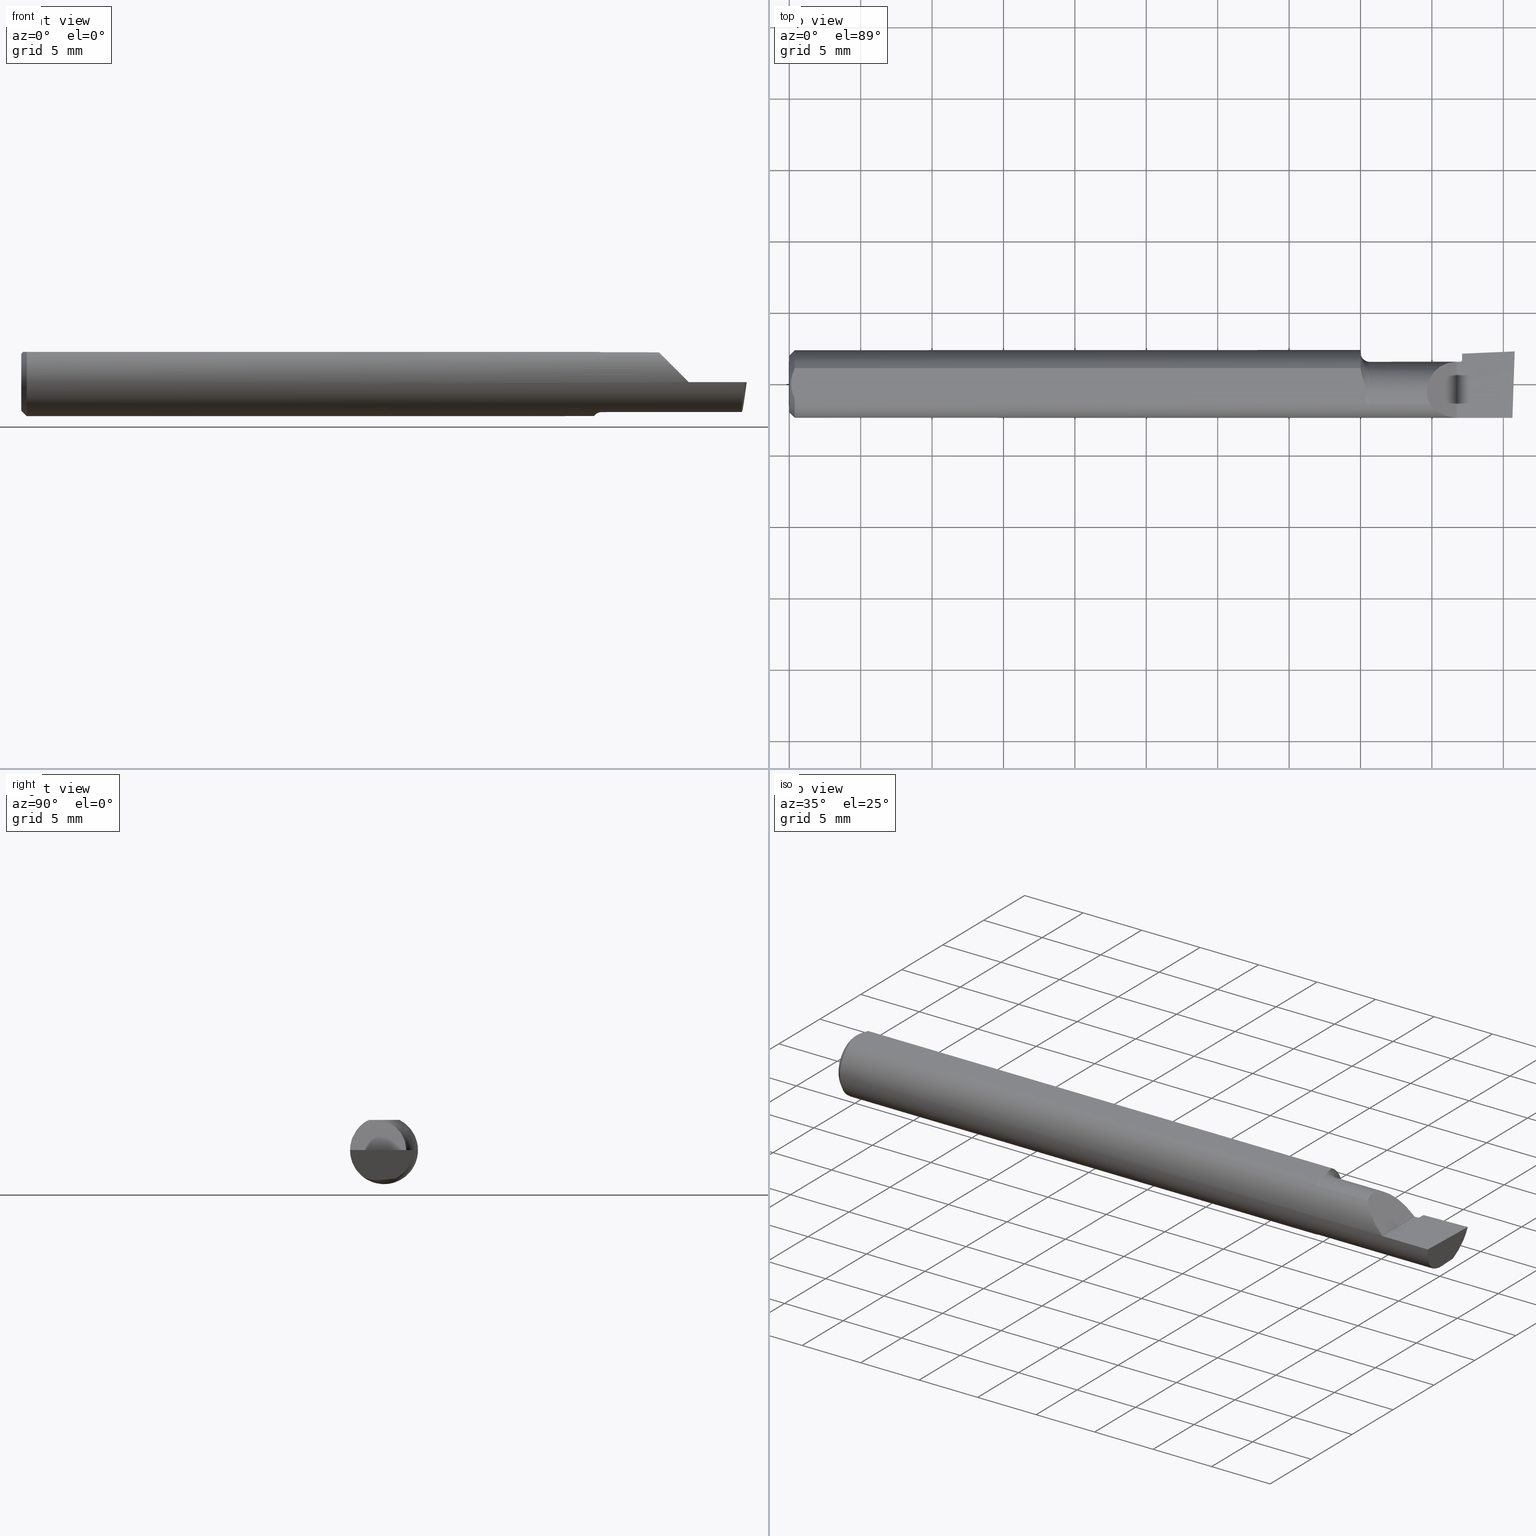
[diagram: canonical four-view strip — front | top / right | iso, engineering-drawing reading convention]
A machine part, canonical four-view strip (front | top / right | iso — engineering-drawing reading convention). The complete STEP part file that produces these views, byte-faithful:
ISO-10303-21;
HEADER;
FILE_DESCRIPTION (( 'STEP AP203' ),
    '1' );
FILE_NAME ('210246-BB183.STEP',
    '2024-04-17T22:10:11',
    ( '' ),
    ( '' ),
    'SwSTEP 2.0',
    'SolidWorks 2022',
    '' );
FILE_SCHEMA (( 'CONFIG_CONTROL_DESIGN' ));
ENDSEC;

DATA;
#1 = PERSON_AND_ORGANIZATION ( #334, #610 ) ;
#2 = CARTESIAN_POINT ( 'NONE',  ( 1.784610455782699834, -0.08049145269555538218, 0.05598954421729967351 ) ) ;
#3 = ORIENTED_EDGE ( 'NONE', *, *, #326, .T. ) ;
#4 = ADVANCED_FACE ( 'NONE', ( #402 ), #208, .T. ) ;
#5 = APPROVAL_STATUS ( 'not_yet_approved' ) ;
#6 = CARTESIAN_POINT ( 'NONE',  ( 1.810798836011073609, -0.09341088610867002984, 0.02980116398892594665 ) ) ;
#7 = ORIENTED_EDGE ( 'NONE', *, *, #52, .F. ) ;
#8 = ADVANCED_FACE ( 'NONE', ( #220 ), #50, .F. ) ;
#9 = CARTESIAN_POINT ( 'NONE',  ( 1.599999999999999867, -0.02100000000000000477, 0.000000000000000000 ) ) ;
#10 = ORIENTED_EDGE ( 'NONE', *, *, #452, .T. ) ;
#11 = CIRCLE ( 'NONE', #340, 0.08239999999999997327 ) ;
#12 = VECTOR ( 'NONE', #511, 39.37007874015748143 ) ;
#13 = DIRECTION ( 'NONE',  ( 0.000000000000000000, 0.9961946980917462113, 0.08715574274765139351 ) ) ;
#14 = DIRECTION ( 'NONE',  ( -1.000000000000000000, -0.000000000000000000, -0.000000000000000000 ) ) ;
#15 = CARTESIAN_POINT ( 'NONE',  ( 0.01500000000000024925, 0.000000000000000000, 0.000000000000000000 ) ) ;
#16 = CARTESIAN_POINT ( 'NONE',  ( 1.985817582123950320, -0.05743333333333348889, -0.07390786306085575519 ) ) ;
#17 = DIRECTION ( 'NONE',  ( 1.000000000000000000, -0.000000000000000000, -0.000000000000000000 ) ) ;
#18 = DIRECTION ( 'NONE',  ( 0.000000000000000000, 0.000000000000000000, 1.000000000000000000 ) ) ;
#19 = AXIS2_PLACEMENT_3D ( 'NONE', #184, #560, #373 ) ;
#20 = ORIENTED_EDGE ( 'NONE', *, *, #75, .T. ) ;
#21 = DIRECTION ( 'NONE',  ( 0.000000000000000000, -1.000000000000000000, 0.000000000000000000 ) ) ;
#22 = DIRECTION ( 'NONE',  ( -4.268512490100411279E-18, -1.000000000000000000, 0.000000000000000000 ) ) ;
#23 = EDGE_CURVE ( 'NONE', #253, #431, #301, .T. ) ;
#24 = ORIENTED_EDGE ( 'NONE', *, *, #424, .F. ) ;
#25 = ORIENTED_EDGE ( 'NONE', *, *, #164, .F. ) ;
#26 = EDGE_CURVE ( 'NONE', #403, #426, #460, .T. ) ;
#27 = CARTESIAN_POINT ( 'NONE',  ( 1.766692136939143953, -0.05743333333333389135, 0.07390786306085547763 ) ) ;
#28 = CARTESIAN_POINT ( 'NONE',  ( 0.01500000000000024925, 0.000000000000000000, 0.000000000000000000 ) ) ;
#29 = ORIENTED_EDGE ( 'NONE', *, *, #337, .F. ) ;
#30 = VECTOR ( 'NONE', #187, 39.37007874015748854 ) ;
#31 = CARTESIAN_POINT ( 'NONE',  ( 1.575142176526518778, 0.04209513036078768589, 0.08360000000000000764 ) ) ;
#32 = CARTESIAN_POINT ( 'NONE',  ( 1.574999999999999956, 0.08639999999999994906, 0.000000000000000000 ) ) ;
#33 = APPLICATION_CONTEXT ( 'configuration controlled 3d designs of mechanical parts and assemblies' ) ;
#34 = ORIENTED_EDGE ( 'NONE', *, *, #96, .F. ) ;
#35 =( NAMED_UNIT ( * ) PLANE_ANGLE_UNIT ( ) SI_UNIT ( $, .RADIAN. ) );
#36 = CARTESIAN_POINT ( 'NONE',  ( 1.995700996757002965, 0.08264169502808201007, -0.03297536001410257545 ) ) ;
#37 = CARTESIAN_POINT ( 'NONE',  ( 1.840000000000000080, 0.06139781550502415586, 0.0005999999999995612792 ) ) ;
#38 = CC_DESIGN_PERSON_AND_ORGANIZATION_ASSIGNMENT ( #553, #508, ( #260 ) ) ;
#39 = CARTESIAN_POINT ( 'NONE',  ( 1.576144576143710285, 0.01709494092009376451, -0.09263046394120928728 ) ) ;
#40 = PERSON_AND_ORGANIZATION ( #334, #610 ) ;
#41 = AXIS2_PLACEMENT_3D ( 'NONE', #542, #113, #22 ) ;
#42 = FACE_OUTER_BOUND ( 'NONE', #119, .T. ) ;
#43 = CIRCLE ( 'NONE', #154, 0.1149226993840855859 ) ;
#44 = CARTESIAN_POINT ( 'NONE',  ( 1.840000000000000080, -0.09359999999999998876, -1.868634782302818344E-17 ) ) ;
#45 = EDGE_LOOP ( 'NONE', ( #551, #76 ) ) ;
#46 = COORDINATED_UNIVERSAL_TIME_OFFSET ( 8, 0, .BEHIND. ) ;
#47 = LINE ( 'NONE', #476, #114 ) ;
#48 = ORIENTED_EDGE ( 'NONE', *, *, #452, .F. ) ;
#49 = CYLINDRICAL_SURFACE ( 'NONE', #596, 0.09360000000000001652 ) ;
#50 = TOROIDAL_SURFACE ( 'NONE', #374, 0.1073999999999999400, 0.02499999999999993894 ) ;
#51 = ORIENTED_EDGE ( 'NONE', *, *, #565, .T. ) ;
#52 = EDGE_CURVE ( 'NONE', #448, #343, #501, .T. ) ;
#53 = B_SPLINE_CURVE_WITH_KNOTS ( 'NONE', 3,
 ( #63, #598, #65, #445, #589, #73 ),
 .UNSPECIFIED., .F., .F.,
 ( 4, 2, 4 ),
 ( 0.001498230153270218050, 0.002046825164355170045, 0.002595420175440121824 ),
 .UNSPECIFIED. ) ;
#54 = DIRECTION ( 'NONE',  ( 1.000000000000000000, 0.000000000000000000, 0.000000000000000000 ) ) ;
#55 = ORIENTED_EDGE ( 'NONE', *, *, #615, .T. ) ;
#56 = CARTESIAN_POINT ( 'NONE',  ( 1.575142176526518778, 0.04209513036078768589, 0.08360000000000000764 ) ) ;
#57 = ORIENTED_EDGE ( 'NONE', *, *, #617, .T. ) ;
#58 = DESIGN_CONTEXT ( 'detailed design', #109, 'design' ) ;
#59 = CARTESIAN_POINT ( 'NONE',  ( 1.943946363665673305, 0.02997020156410651337, -0.07825543979908149150 ) ) ;
#60 = CARTESIAN_POINT ( 'NONE',  ( 1.587244037189778689, -0.04400341751547286878, -0.08275374857139974893 ) ) ;
#61 = AXIS2_PLACEMENT_3D ( 'NONE', #32, #618, #567 ) ;
#62 = CONICAL_SURFACE ( 'NONE', #429, 0.1138748889330658265, 0.04188790204786419641 ) ;
#63 = CARTESIAN_POINT ( 'NONE',  ( 0.01500000000000024925, 0.04209513035969833505, 0.08360000000000004927 ) ) ;
#64 = CARTESIAN_POINT ( 'NONE',  ( 1.724999999999999867, -0.05743333333333348889, 0.07390786306085575519 ) ) ;
#65 = CARTESIAN_POINT ( 'NONE',  ( 0.009483687754784102600, 0.02856776309113260789, 0.08360000000000000764 ) ) ;
#66 = VERTEX_POINT ( 'NONE', #306 ) ;
#67 = DIRECTION ( 'NONE',  ( 0.1219414168599299853, 0.000000000000000000, 0.9925372994775525370 ) ) ;
#68 = PLANE ( 'NONE',  #318 ) ;
#69 = ADVANCED_FACE ( 'NONE', ( #594 ), #68, .F. ) ;
#70 = ADVANCED_FACE ( 'NONE', ( #266 ), #351, .F. ) ;
#71 = ORIENTED_EDGE ( 'NONE', *, *, #615, .F. ) ;
#72 = CIRCLE ( 'NONE', #450, 0.07859999999999980891 ) ;
#73 = CARTESIAN_POINT ( 'NONE',  ( 0.005000000000000217812, 1.023804700982173805E-17, 0.08360000000000000764 ) ) ;
#74 = CARTESIAN_POINT ( 'NONE',  ( 0.000000000000000000, -0.02099999999999999437, 0.000000000000000000 ) ) ;
#75 = EDGE_CURVE ( 'NONE', #555, #66, #124, .T. ) ;
#76 = ORIENTED_EDGE ( 'NONE', *, *, #586, .T. ) ;
#77 =( BOUNDED_CURVE ( )  B_SPLINE_CURVE ( 3, ( #375, #621, #36, #554 ),
 .UNSPECIFIED., .F., .T. ) 
 B_SPLINE_CURVE_WITH_KNOTS ( ( 4, 4 ),
 ( 3.960321937159471783, 4.773880858322181453 ),
 .UNSPECIFIED. ) 
 CURVE ( )  GEOMETRIC_REPRESENTATION_ITEM ( )  RATIONAL_B_SPLINE_CURVE ( ( 1.000000000000000000, 0.9455998676827520599, 0.9455998676827520599, 1.000000000000000000 ) ) 
 REPRESENTATION_ITEM ( '' )  );
#78 = CARTESIAN_POINT ( 'NONE',  ( 1.586717443774290803, -0.04209513035984616125, 0.08360000000000000764 ) ) ;
#79 = CARTESIAN_POINT ( 'NONE',  ( 1.574999999999999956, 0.05554285714285678299, -0.07533890774631794851 ) ) ;
#80 = EDGE_LOOP ( 'NONE', ( #34, #587, #25, #129 ) ) ;
#81 = CARTESIAN_POINT ( 'NONE',  ( 1.854999999999999760, -0.02860000000000001083, 0.02500000000000000139 ) ) ;
#82 = CARTESIAN_POINT ( 'NONE',  ( 1.840000000000000080, 0.09359999999999998876, -1.868634782302818344E-17 ) ) ;
#83 = VERTEX_POINT ( 'NONE', #603 ) ;
#84 = TOROIDAL_SURFACE ( 'NONE', #552, 0.08739999999999989444, 0.004999999999999903827 ) ;
#85 = SECURITY_CLASSIFICATION ( '', '', #148 ) ;
#86 = DIRECTION ( 'NONE',  ( 0.000000000000000000, 0.000000000000000000, 1.000000000000000000 ) ) ;
#87 = VERTEX_POINT ( 'NONE', #538 ) ;
#88 = LINE ( 'NONE', #135, #12 ) ;
#89 = CARTESIAN_POINT ( 'NONE',  ( 1.575168354287724393, 0.03731812126117082379, -0.08648697983258356314 ) ) ;
#90 = DATE_TIME_ROLE ( 'classification_date' ) ;
#91 = PLANE ( 'NONE',  #201 ) ;
#92 = COORDINATED_UNIVERSAL_TIME_OFFSET ( 8, 0, .BEHIND. ) ;
#93 = AXIS2_PLACEMENT_3D ( 'NONE', #138, #312, #416 ) ;
#94 = CARTESIAN_POINT ( 'NONE',  ( 1.857912095033705357, 0.08369557080627151868, -1.868634782302818344E-17 ) ) ;
#95 = LOCAL_TIME ( 15, 10, 11.00000000000000000, #242 ) ;
#96 = EDGE_CURVE ( 'NONE', #277, #616, #11, .T. ) ;
#97 = FACE_OUTER_BOUND ( 'NONE', #281, .T. ) ;
#98 = ORIENTED_EDGE ( 'NONE', *, *, #539, .T. ) ;
#99 = APPROVAL_DATE_TIME ( #527, #600 ) ;
#100 = CARTESIAN_POINT ( 'NONE',  ( 2.000000000000000444, 0.08978918869558996652, 4.097771990496394828E-16 ) ) ;
#101 = ORIENTED_EDGE ( 'NONE', *, *, #497, .F. ) ;
#102 =( BOUNDED_CURVE ( )  B_SPLINE_CURVE ( 3, ( #288, #6, #2, #243 ),
 .UNSPECIFIED., .F., .T. ) 
 B_SPLINE_CURVE_WITH_KNOTS ( ( 4, 4 ),
 ( 4.718799280696806875, 5.622568524807391555 ),
 .UNSPECIFIED. ) 
 CURVE ( )  GEOMETRIC_REPRESENTATION_ITEM ( )  RATIONAL_B_SPLINE_CURVE ( ( 1.000000000000000000, 0.9330838387302625714, 0.9330838387302625714, 1.000000000000000000 ) ) 
 REPRESENTATION_ITEM ( '' )  );
#103 = PERSON_AND_ORGANIZATION ( #334, #610 ) ;
#104 = CARTESIAN_POINT ( 'NONE',  ( 1.906245324762311455, 0.08577087285469074673, -1.868634782302818344E-17 ) ) ;
#105 = ORIENTED_EDGE ( 'NONE', *, *, #404, .T. ) ;
#106 = CONICAL_SURFACE ( 'NONE', #226, 0.09360000000000001652, 0.7853981633974466137 ) ;
#107 = CARTESIAN_POINT ( 'NONE',  ( 1.999939969396823392, 0.08805703149137224239, -1.868634782302818344E-17 ) ) ;
#108 = VERTEX_POINT ( 'NONE', #451 ) ;
#109 = APPLICATION_CONTEXT ( 'configuration controlled 3d designs of mechanical parts and assemblies' ) ;
#110 = CARTESIAN_POINT ( 'NONE',  ( 0.01499999999997154825, -0.04209513035984145668, 0.08360000000000000764 ) ) ;
#111 = CARTESIAN_POINT ( 'NONE',  ( 1.599999999999999867, -0.05743333333333335705, -0.07390786306085585233 ) ) ;
#112 = FACE_OUTER_BOUND ( 'NONE', #80, .T. ) ;
#113 = DIRECTION ( 'NONE',  ( -1.000000000000000000, 4.268512490100411279E-18, 0.000000000000000000 ) ) ;
#114 = VECTOR ( 'NONE', #486, 39.37007874015748143 ) ;
#115 = LINE ( 'NONE', #401, #350 ) ;
#116 = DIRECTION ( 'NONE',  ( 1.000000000000000000, 0.000000000000000000, 0.000000000000000000 ) ) ;
#117 = CARTESIAN_POINT ( 'NONE',  ( 1.829999999999999849, -0.02860000000000001083, 0.02500000000000000139 ) ) ;
#118 = ADVANCED_FACE ( 'NONE', ( #358 ), #453, .T. ) ;
#119 = EDGE_LOOP ( 'NONE', ( #51, #347, #29, #173, #533, #388, #156 ) ) ;
#120 =( BOUNDED_CURVE ( )  B_SPLINE_CURVE ( 3, ( #171, #362, #274, #127 ),
 .UNSPECIFIED., .F., .F. ) 
 B_SPLINE_CURVE_WITH_KNOTS ( ( 4, 4 ),
 ( 0.3856751006538576276, 1.295854645076564893 ),
 .UNSPECIFIED. ) 
 CURVE ( )  GEOMETRIC_REPRESENTATION_ITEM ( )  RATIONAL_B_SPLINE_CURVE ( ( 1.000000000000000000, 0.9321477153702213414, 0.9321477153702213414, 1.000000000000000000 ) ) 
 REPRESENTATION_ITEM ( '' )  );
#121 = DIRECTION ( 'NONE',  ( 0.000000000000000000, 0.000000000000000000, -1.000000000000000000 ) ) ;
#122 = EDGE_CURVE ( 'NONE', #225, #555, #398, .T. ) ;
#123 = CARTESIAN_POINT ( 'NONE',  ( 1.597347190739961675, -0.05697548597935362530, -0.07426583441000250696 ) ) ;
#124 = CIRCLE ( 'NONE', #534, 0.09360000000000001652 ) ;
#125 = ORIENTED_EDGE ( 'NONE', *, *, #183, .T. ) ;
#126 = CC_DESIGN_APPROVAL ( #600, ( #264 ) ) ;
#127 = CARTESIAN_POINT ( 'NONE',  ( 1.993644362309209273, -0.09359999999999998876, -1.868634782302818344E-17 ) ) ;
#128 = FACE_OUTER_BOUND ( 'NONE', #176, .T. ) ;
#129 = ORIENTED_EDGE ( 'NONE', *, *, #140, .T. ) ;
#130 = CARTESIAN_POINT ( 'NONE',  ( 1.772303341926772635, 0.06090486560586779591, 0.06829665807322723992 ) ) ;
#131 = CARTESIAN_POINT ( 'NONE',  ( 1.575040027559960309, 0.04685176294831536192, 0.08120489152038623537 ) ) ;
#132 = ORIENTED_EDGE ( 'NONE', *, *, #122, .F. ) ;
#133 = CARTESIAN_POINT ( 'NONE',  ( 0.01500000000000024925, 0.04209513035969833505, 0.08360000000000004927 ) ) ;
#134 = AXIS2_PLACEMENT_3D ( 'NONE', #308, #302, #67 ) ;
#135 = CARTESIAN_POINT ( 'NONE',  ( 2.000000000000000000, -0.01381836679759350546, -0.08208644312275988064 ) ) ;
#136 = DIRECTION ( 'NONE',  ( -1.000000000000000000, 4.268512490100411279E-18, -0.000000000000000000 ) ) ;
#137 = LENGTH_MEASURE_WITH_UNIT ( LENGTH_MEASURE( 0.02539999999999999897 ), #559 );
#138 = CARTESIAN_POINT ( 'NONE',  ( 0.01500000000000024925, 0.000000000000000000, 0.000000000000000000 ) ) ;
#139 = CARTESIAN_POINT ( 'NONE',  ( 1.724999999999999867, -0.05743333333333348889, -0.07390786306085575519 ) ) ;
#140 = EDGE_CURVE ( 'NONE', #371, #616, #316, .T. ) ;
#141 = APPROVAL_ROLE ( '' ) ;
#142 = AXIS2_PLACEMENT_3D ( 'NONE', #192, #387, #295 ) ;
#143 = DIRECTION ( 'NONE',  ( -4.252269511376426926E-18, -0.9961946980917462113, -0.08715574274765139351 ) ) ;
#144 = LOCAL_TIME ( 15, 10, 11.00000000000000000, #92 ) ;
#145 = ORIENTED_EDGE ( 'NONE', *, *, #521, .F. ) ;
#146 = CALENDAR_DATE ( 2024, 17, 4 ) ;
#147 = VERTEX_POINT ( 'NONE', #420 ) ;
#148 = SECURITY_CLASSIFICATION_LEVEL ( 'unclassified' ) ;
#149 = DIRECTION ( 'NONE',  ( -1.000000000000000000, -0.000000000000000000, -0.000000000000000000 ) ) ;
#150 = ORIENTED_EDGE ( 'NONE', *, *, #357, .T. ) ;
#151 = PERSON_AND_ORGANIZATION_ROLE ( 'design_supplier' ) ;
#152 = CARTESIAN_POINT ( 'NONE',  ( 1.993644362309209273, -0.09359999999999998876, -1.868634782302818344E-17 ) ) ;
#153 = EDGE_LOOP ( 'NONE', ( #517, #55, #215, #629, #314 ) ) ;
#154 = AXIS2_PLACEMENT_3D ( 'NONE', #81, #177, #369 ) ;
#155 = CARTESIAN_POINT ( 'NONE',  ( 1.589459435960657752, -0.04855549187618748985, 0.08009376993471994943 ) ) ;
#156 = ORIENTED_EDGE ( 'NONE', *, *, #140, .F. ) ;
#157 = DIRECTION ( 'NONE',  ( -1.000000000000000000, 0.000000000000000000, -0.000000000000000000 ) ) ;
#158 = ORIENTED_EDGE ( 'NONE', *, *, #584, .T. ) ;
#159 =( BOUNDED_CURVE ( )  B_SPLINE_CURVE ( 3, ( #37, #130, #271, #27 ),
 .UNSPECIFIED., .F., .F. ) 
 B_SPLINE_CURVE_WITH_KNOTS ( ( 4, 4 ),
 ( 4.719670598130175421, 6.741181949416954922 ),
 .UNSPECIFIED. ) 
 CURVE ( )  GEOMETRIC_REPRESENTATION_ITEM ( )  RATIONAL_B_SPLINE_CURVE ( ( 1.000000000000000000, 0.6874804262519065290, 0.6874804262519065290, 1.000000000000000000 ) ) 
 REPRESENTATION_ITEM ( '' )  );
#160 = CARTESIAN_POINT ( 'NONE',  ( 1.851189267392480575, -0.009008650726626359767, -0.08166564749177186722 ) ) ;
#161 = DIRECTION ( 'NONE',  ( 0.000000000000000000, 0.000000000000000000, -1.000000000000000000 ) ) ;
#162 = VECTOR ( 'NONE', #54, 39.37007874015748143 ) ;
#163 = AXIS2_PLACEMENT_3D ( 'NONE', #9, #494, #21 ) ;
#164 = EDGE_CURVE ( 'NONE', #371, #221, #503, .T. ) ;
#165 = LINE ( 'NONE', #346, #310 ) ;
#166 = DIRECTION ( 'NONE',  ( -1.000000000000000000, 4.268512490100411279E-18, -0.000000000000000000 ) ) ;
#167 = ORIENTED_EDGE ( 'NONE', *, *, #569, .T. ) ;
#168 = PLANE ( 'NONE',  #214 ) ;
#169 = CARTESIAN_POINT ( 'NONE',  ( 0.000000000000000000, 0.000000000000000000, 0.000000000000000000 ) ) ;
#170 = ORIENTED_EDGE ( 'NONE', *, *, #96, .T. ) ;
#171 = CARTESIAN_POINT ( 'NONE',  ( 1.985817582123950320, -0.05743333333333348889, -0.07390786306085575519 ) ) ;
#172 = CARTESIAN_POINT ( 'NONE',  ( 1.575000000000000178, 0.04702664240545763319, -0.08161740198929257062 ) ) ;
#173 = ORIENTED_EDGE ( 'NONE', *, *, #254, .F. ) ;
#174 = CARTESIAN_POINT ( 'NONE',  ( 1.592368946907285476, -0.02449212022604190311, 0.08360000000000003539 ) ) ;
#175 = DIRECTION ( 'NONE',  ( -0.000000000000000000, 1.000000000000000000, -0.000000000000000000 ) ) ;
#176 = EDGE_LOOP ( 'NONE', ( #604, #247, #434, #361 ) ) ;
#177 = DIRECTION ( 'NONE',  ( -1.000000000000000000, 4.268512490100411279E-18, -0.000000000000000000 ) ) ;
#178 = LINE ( 'NONE', #419, #438 ) ;
#179 = ORIENTED_EDGE ( 'NONE', *, *, #23, .F. ) ;
#180 = CARTESIAN_POINT ( 'NONE',  ( 1.854999999999999760, -0.02100000000000000477, 0.000000000000000000 ) ) ;
#181 = VECTOR ( 'NONE', #259, 39.37007874015748143 ) ;
#182 = MECHANICAL_CONTEXT ( 'NONE', #33, 'mechanical' ) ;
#183 = EDGE_CURVE ( 'NONE', #83, #354, #77, .T. ) ;
#184 = CARTESIAN_POINT ( 'NONE',  ( 1.840000000000000080, 0.000000000000000000, 0.000000000000000000 ) ) ;
#185 = CALENDAR_DATE ( 2024, 17, 4 ) ;
#186 = ADVANCED_FACE ( 'NONE', ( #42 ), #91, .F. ) ;
#187 = DIRECTION ( 'NONE',  ( 0.03463576215158526567, 0.9994000019912840926, 0.000000000000000000 ) ) ;
#188 = PERSON_AND_ORGANIZATION ( #334, #610 ) ;
#189 = CARTESIAN_POINT ( 'NONE',  ( 1.854999999999999760, 0.1376433052386445421, -0.06883526386090864368 ) ) ;
#190 = EDGE_LOOP ( 'NONE', ( #548, #241, #125, #307, #410 ) ) ;
#191 = CIRCLE ( 'NONE', #300, 0.1073999999999999538 ) ;
#192 = CARTESIAN_POINT ( 'NONE',  ( 1.756999999999999673, 0.04793338999999999933, 0.08360000000000000764 ) ) ;
#193 = ORIENTED_EDGE ( 'NONE', *, *, #617, .F. ) ;
#194 = CARTESIAN_POINT ( 'NONE',  ( 0.000000000000000000, 1.054420894065869948E-17, 0.07859999999999980891 ) ) ;
#195 = APPROVAL ( #623, 'UNSPECIFIED' ) ;
#196 = VERTEX_POINT ( 'NONE', #133 ) ;
#197 = SHAPE_DEFINITION_REPRESENTATION ( #206, #595 ) ;
#198 = CARTESIAN_POINT ( 'NONE',  ( 1.849999999999999867, 0.06139999999999991298, -1.868634782302817419E-17 ) ) ;
#199 = ORIENTED_EDGE ( 'NONE', *, *, #385, .F. ) ;
#200 = DIRECTION ( 'NONE',  ( 1.000000000000000000, 4.268512490100411279E-18, 0.000000000000000000 ) ) ;
#201 = AXIS2_PLACEMENT_3D ( 'NONE', #317, #321, #614 ) ;
#202 = EDGE_LOOP ( 'NONE', ( #145, #293, #502, #48, #289 ) ) ;
#203 = EDGE_CURVE ( 'NONE', #403, #108, #484, .T. ) ;
#204 = CARTESIAN_POINT ( 'NONE',  ( 1.599999999999999867, -0.05743333333333334317, 0.07390786306085586621 ) ) ;
#205 = CARTESIAN_POINT ( 'NONE',  ( 1.598629319350718392, -0.05743333333333337787, -0.07390786306085582458 ) ) ;
#206 = PRODUCT_DEFINITION_SHAPE ( 'NONE', 'NONE',  #264 ) ;
#207 = CARTESIAN_POINT ( 'NONE',  ( 1.840000000000000080, 0.09359999999999998876, -1.868634782302818344E-17 ) ) ;
#208 = PLANE ( 'NONE',  #41 ) ;
#209 = EDGE_CURVE ( 'NONE', #343, #83, #234, .T. ) ;
#210 = ADVANCED_FACE ( 'NONE', ( #284 ), #471, .T. ) ;
#211 = DIRECTION ( 'NONE',  ( 0.000000000000000000, 1.000000000000000000, 0.000000000000000000 ) ) ;
#212 = DIRECTION ( 'NONE',  ( -4.268512490100411279E-18, -1.000000000000000000, 0.000000000000000000 ) ) ;
#213 = CIRCLE ( 'NONE', #566, 0.08739999999999989444 ) ;
#214 = AXIS2_PLACEMENT_3D ( 'NONE', #396, #349, #13 ) ;
#215 = ORIENTED_EDGE ( 'NONE', *, *, #490, .F. ) ;
#216 = CARTESIAN_POINT ( 'NONE',  ( 1.593500194611085830, -0.05420457752416603381, 0.07632036423959691340 ) ) ;
#217 = DIRECTION ( 'NONE',  ( -1.000000000000000000, 0.000000000000000000, 0.000000000000000000 ) ) ;
#218 = ORIENTED_EDGE ( 'NONE', *, *, #565, .F. ) ;
#219 = B_SPLINE_CURVE_WITH_KNOTS ( 'NONE', 3,
 ( #427, #581, #286, #482, #628, #332 ),
 .UNSPECIFIED., .F., .F.,
 ( 4, 2, 4 ),
 ( 0.002595420175440121824, 0.003143963582281870776, 0.003692506989123619295 ),
 .UNSPECIFIED. ) ;
#220 = FACE_OUTER_BOUND ( 'NONE', #379, .T. ) ;
#221 = VERTEX_POINT ( 'NONE', #367 ) ;
#222 = EDGE_CURVE ( 'NONE', #108, #601, #213, .T. ) ;
#223 = CARTESIAN_POINT ( 'NONE',  ( 1.574999999999999956, 0.05554285714285678299, 0.07533890774631794851 ) ) ;
#224 = VECTOR ( 'NONE', #175, 39.37007874015748143 ) ;
#225 = VERTEX_POINT ( 'NONE', #512 ) ;
#226 = AXIS2_PLACEMENT_3D ( 'NONE', #15, #17, #121 ) ;
#227 = CARTESIAN_POINT ( 'NONE',  ( 1.581312814023121849, 0.01393385481374755965, 0.08360000000000000764 ) ) ;
#228 = DIRECTION ( 'NONE',  ( 0.000000000000000000, -1.000000000000000000, 0.000000000000000000 ) ) ;
#229 = ORIENTED_EDGE ( 'NONE', *, *, #279, .T. ) ;
#230 =( NAMED_UNIT ( * ) SI_UNIT ( $, .STERADIAN. ) SOLID_ANGLE_UNIT ( ) );
#231 = CARTESIAN_POINT ( 'NONE',  ( 1.840000000000000080, 0.09359999999999998876, 0.0005999999999995612792 ) ) ;
#232 = ADVANCED_FACE ( 'NONE', ( #128 ), #84, .F. ) ;
#233 = EDGE_CURVE ( 'NONE', #87, #196, #380, .T. ) ;
#234 = LINE ( 'NONE', #467, #348 ) ;
#235 = EDGE_CURVE ( 'NONE', #277, #221, #570, .T. ) ;
#236 = AXIS2_PLACEMENT_3D ( 'NONE', #515, #86, #456 ) ;
#237 = CALENDAR_DATE ( 2024, 17, 4 ) ;
#238 = DIRECTION ( 'NONE',  ( 1.000000000000000000, -0.000000000000000000, -0.000000000000000000 ) ) ;
#239 = PERSON_AND_ORGANIZATION ( #334, #610 ) ;
#240 = CARTESIAN_POINT ( 'NONE',  ( 1.849999999999999867, -0.01381836679759353669, -0.08208644312275979738 ) ) ;
#241 = ORIENTED_EDGE ( 'NONE', *, *, #209, .T. ) ;
#242 = COORDINATED_UNIVERSAL_TIME_OFFSET ( 8, 0, .BEHIND. ) ;
#243 = CARTESIAN_POINT ( 'NONE',  ( 1.766692136939143953, -0.05743333333333389135, 0.07390786306085547763 ) ) ;
#244 = VERTEX_POINT ( 'NONE', #465 ) ;
#245 = LOCAL_TIME ( 15, 10, 11.00000000000000000, #335 ) ;
#246 = CARTESIAN_POINT ( 'NONE',  ( 1.854999999999999760, 0.08357052569068625092, -1.707404996040164512E-17 ) ) ;
#247 = ORIENTED_EDGE ( 'NONE', *, *, #490, .T. ) ;
#248 = PERSON_AND_ORGANIZATION_ROLE ( 'classification_officer' ) ;
#249 = DIRECTION ( 'NONE',  ( 0.000000000000000000, 0.000000000000000000, 1.000000000000000000 ) ) ;
#250 = ORIENTED_EDGE ( 'NONE', *, *, #26, .T. ) ;
#251 = ADVANCED_FACE ( 'NONE', ( #611 ), #364, .T. ) ;
#252 = CARTESIAN_POINT ( 'NONE',  ( 1.855000000000042171, 0.02003397974934768497, -0.07912474656615180180 ) ) ;
#253 = VERTEX_POINT ( 'NONE', #324 ) ;
#254 = EDGE_CURVE ( 'NONE', #108, #291, #178, .T. ) ;
#255 = CARTESIAN_POINT ( 'NONE',  ( 1.988502654630791344, 0.03415700188930223535, -0.07788914223418023919 ) ) ;
#256 = AXIS2_PLACEMENT_3D ( 'NONE', #478, #625, #378 ) ;
#257 = DIRECTION ( 'NONE',  ( -4.268512490100411279E-18, -1.000000000000000000, 0.000000000000000000 ) ) ;
#258 = CARTESIAN_POINT ( 'NONE',  ( 1.854258593080915452, 0.005393480738209611471, -0.08040562425798880586 ) ) ;
#259 = DIRECTION ( 'NONE',  ( 1.000000000000000000, -4.268512490100411279E-18, 0.000000000000000000 ) ) ;
#260 = PRODUCT ( '210246-BB183', '210246-BB183', '', ( #182 ) ) ;
#261 = FACE_OUTER_BOUND ( 'NONE', #153, .T. ) ;
#262 = CARTESIAN_POINT ( 'NONE',  ( 1.985638364069035822, -0.02892578711483820980, -0.08340817113563987750 ) ) ;
#263 = EDGE_LOOP ( 'NONE', ( #507, #479, #193, #296 ) ) ;
#264 = PRODUCT_DEFINITION ( 'UNKNOWN', '', #413, #58 ) ;
#265 = PLANE ( 'NONE',  #516 ) ;
#266 = FACE_OUTER_BOUND ( 'NONE', #483, .T. ) ;
#267 = ORIENTED_EDGE ( 'NONE', *, *, #233, .T. ) ;
#268 = DIRECTION ( 'NONE',  ( 1.000000000000000000, -0.000000000000000000, -0.000000000000000000 ) ) ;
#269 = CARTESIAN_POINT ( 'NONE',  ( 1.591816709666234786, -0.05223004665611983427, -0.07770207897814300491 ) ) ;
#270 = ORIENTED_EDGE ( 'NONE', *, *, #424, .T. ) ;
#271 = CARTESIAN_POINT ( 'NONE',  ( 1.736759123618126788, 0.003288122737896577701, 0.1038408763818731151 ) ) ;
#272 = DIRECTION ( 'NONE',  ( 0.04518627981622180823, 0.9951771633164323561, 0.08706671999006805607 ) ) ;
#273 = B_SPLINE_CURVE_WITH_KNOTS ( 'NONE', 3,
 ( #443, #593, #155, #499, #216, #299, #441, #204 ),
 .UNSPECIFIED., .F., .F.,
 ( 4, 2, 2, 4 ),
 ( 4.683264684582365770E-07, 0.0002986912473784077604, 0.0004478027078333824220, 0.0005969141682883572463 ),
 .UNSPECIFIED. ) ;
#274 = CARTESIAN_POINT ( 'NONE',  ( 1.990029385046013344, -0.09360000000000001652, -0.02942396326758928149 ) ) ;
#275 = CARTESIAN_POINT ( 'NONE',  ( 1.849999999999999867, -0.02099999999999998743, 0.000000000000000000 ) ) ;
#276 = VECTOR ( 'NONE', #292, 39.37007874015748143 ) ;
#277 = VERTEX_POINT ( 'NONE', #557 ) ;
#278 = DIRECTION ( 'NONE',  ( 0.000000000000000000, -1.000000000000000000, 0.000000000000000000 ) ) ;
#279 = EDGE_CURVE ( 'NONE', #66, #244, #562, .T. ) ;
#280 = EDGE_CURVE ( 'NONE', #457, #495, #509, .T. ) ;
#281 = EDGE_LOOP ( 'NONE', ( #24, #338, #218, #384, #150, #179, #462, #487, #10, #267, #355, #368, #454, #132 ) ) ;
#282 = CARTESIAN_POINT ( 'NONE',  ( 1.576960904884547432, 0.006343059769487768493, -0.09397454098218586960 ) ) ;
#283 = DATE_AND_TIME ( #237, #95 ) ;
#284 = FACE_OUTER_BOUND ( 'NONE', #390, .T. ) ;
#285 = AXIS2_PLACEMENT_3D ( 'NONE', #28, #238, #422 ) ;
#286 = CARTESIAN_POINT ( 'NONE',  ( 0.005981945000908654025, -0.01453549720624409958, 0.08360000000000000764 ) ) ;
#287 = APPROVAL_DATE_TIME ( #583, #195 ) ;
#288 = CARTESIAN_POINT ( 'NONE',  ( 1.840000000000000080, -0.09359807690332104524, 0.0005999999999995612792 ) ) ;
#289 = ORIENTED_EDGE ( 'NONE', *, *, #363, .F. ) ;
#290 = LINE ( 'NONE', #336, #162 ) ;
#291 = VERTEX_POINT ( 'NONE', #246 ) ;
#292 = DIRECTION ( 'NONE',  ( -1.000000000000000000, -0.000000000000000000, -0.000000000000000000 ) ) ;
#293 = ORIENTED_EDGE ( 'NONE', *, *, #297, .F. ) ;
#294 = EDGE_CURVE ( 'NONE', #529, #87, #383, .T. ) ;
#295 = DIRECTION ( 'NONE',  ( -0.7071067811865474617, 0.000000000000000000, 0.7071067811865474617 ) ) ;
#296 = ORIENTED_EDGE ( 'NONE', *, *, #337, .T. ) ;
#297 = EDGE_CURVE ( 'NONE', #529, #331, #575, .T. ) ;
#298 = PLANE ( 'NONE',  #134 ) ;
#299 = CARTESIAN_POINT ( 'NONE',  ( 1.596236548575434178, -0.05647099370358304310, 0.07465896525112006299 ) ) ;
#300 = AXIS2_PLACEMENT_3D ( 'NONE', #389, #585, #624 ) ;
#301 = LINE ( 'NONE', #64, #181 ) ;
#302 = DIRECTION ( 'NONE',  ( -0.9919506264397697226, 0.03437759245049861606, 0.1218693392246628648 ) ) ;
#303 = DIRECTION ( 'NONE',  ( -0.000000000000000000, 0.000000000000000000, -1.000000000000000000 ) ) ;
#304 = PRODUCT_RELATED_PRODUCT_CATEGORY ( 'detail', '', ( #260 ) ) ;
#305 = CARTESIAN_POINT ( 'NONE',  ( 1.855000000000042171, 0.02003397974934768497, -0.07912474656615180180 ) ) ;
#306 = CARTESIAN_POINT ( 'NONE',  ( 1.574999999999999956, 0.05554285714285678299, 0.07533890774631794851 ) ) ;
#307 = ORIENTED_EDGE ( 'NONE', *, *, #408, .F. ) ;
#308 = CARTESIAN_POINT ( 'NONE',  ( 1.959014883581128075, 0.09122042049864560742, -0.3340004505562900183 ) ) ;
#309 = CARTESIAN_POINT ( 'NONE',  ( 1.595169538597540848, -0.05567765305827140909, -0.07524373138753948087 ) ) ;
#310 = VECTOR ( 'NONE', #268, 39.37007874015748143 ) ;
#311 = ORIENTED_EDGE ( 'NONE', *, *, #122, .T. ) ;
#312 = DIRECTION ( 'NONE',  ( 1.000000000000000000, -0.000000000000000000, -0.000000000000000000 ) ) ;
#313 = ADVANCED_FACE ( 'NONE', ( #97 ), #49, .T. ) ;
#314 = ORIENTED_EDGE ( 'NONE', *, *, #563, .T. ) ;
#315 = CARTESIAN_POINT ( 'NONE',  ( 1.854999999999999760, 0.01520836038880597069, -0.07954693355469039107 ) ) ;
#316 = LINE ( 'NONE', #82, #224 ) ;
#317 = CARTESIAN_POINT ( 'NONE',  ( 1.840000000000000080, 0.09359999999999998876, -1.868634782302818344E-17 ) ) ;
#318 = AXIS2_PLACEMENT_3D ( 'NONE', #169, #116, #161 ) ;
#319 = ORIENTED_EDGE ( 'NONE', *, *, #404, .F. ) ;
#320 = DIRECTION ( 'NONE',  ( 1.000000000000000000, 0.000000000000000000, 0.000000000000000000 ) ) ;
#321 = DIRECTION ( 'NONE',  ( -0.000000000000000000, 0.000000000000000000, -1.000000000000000000 ) ) ;
#322 = CC_DESIGN_DATE_AND_TIME_ASSIGNMENT ( #339, #90, ( #85 ) ) ;
#323 =( CONVERSION_BASED_UNIT ( 'INCH', #137 ) LENGTH_UNIT ( ) NAMED_UNIT ( #435 ) );
#324 = CARTESIAN_POINT ( 'NONE',  ( 1.599999999999999867, -0.05743333333333334317, 0.07390786306085586621 ) ) ;
#325 = DIRECTION ( 'NONE',  ( -1.000000000000000000, 4.268512490100411279E-18, -0.000000000000000000 ) ) ;
#326 = EDGE_CURVE ( 'NONE', #395, #601, #425, .T. ) ;
#327 = AXIS2_PLACEMENT_3D ( 'NONE', #400, #166, #546 ) ;
#328 = CIRCLE ( 'NONE', #461, 0.09360000000000001652 ) ;
#329 = CALENDAR_DATE ( 2024, 17, 4 ) ;
#330 = CARTESIAN_POINT ( 'NONE',  ( 0.01500000000000024925, 0.000000000000000000, -0.09360000000000001652 ) ) ;
#331 = VERTEX_POINT ( 'NONE', #194 ) ;
#332 = CARTESIAN_POINT ( 'NONE',  ( 0.01499999999997154825, -0.04209513035984145668, 0.08360000000000000764 ) ) ;
#333 = ORIENTED_EDGE ( 'NONE', *, *, #235, .F. ) ;
#334 = PERSON ( 'UNSPECIFIED', 'UNSPECIFIED', 'UNSPECIFIED', ('UNSPECIFIED'), ('UNSPECIFIED'), ('UNSPECIFIED') ) ;
#335 = COORDINATED_UNIVERSAL_TIME_OFFSET ( 8, 0, .BEHIND. ) ;
#336 = CARTESIAN_POINT ( 'NONE',  ( 2.000000000000000000, 0.04209513035969836975, 0.08360000000000000764 ) ) ;
#337 = EDGE_CURVE ( 'NONE', #291, #354, #470, .T. ) ;
#338 = ORIENTED_EDGE ( 'NONE', *, *, #588, .T. ) ;
#339 = DATE_AND_TIME ( #146, #245 ) ;
#340 = AXIS2_PLACEMENT_3D ( 'NONE', #406, #14, #18 ) ;
#341 = ADVANCED_FACE ( 'NONE', ( #535 ), #525, .F. ) ;
#342 = LINE ( 'NONE', #107, #30 ) ;
#343 = VERTEX_POINT ( 'NONE', #573 ) ;
#344 = CARTESIAN_POINT ( 'NONE',  ( 1.574999999999999956, 0.05554285714285678299, -0.07533890774631794851 ) ) ;
#345 = CARTESIAN_POINT ( 'NONE',  ( 1.574999999999999956, 0.000000000000000000, 0.000000000000000000 ) ) ;
#346 = CARTESIAN_POINT ( 'NONE',  ( 1.840000000000000080, -0.09359999999999998876, -1.868634782302818344E-17 ) ) ;
#347 = ORIENTED_EDGE ( 'NONE', *, *, #408, .T. ) ;
#348 = VECTOR ( 'NONE', #272, 39.37007874015748854 ) ;
#349 = DIRECTION ( 'NONE',  ( 0.000000000000000000, 0.08715574274765139351, -0.9961946980917462113 ) ) ;
#350 = VECTOR ( 'NONE', #496, 39.37007874015748143 ) ;
#351 = PLANE ( 'NONE',  #392 ) ;
#352 = APPROVAL ( #485, 'UNSPECIFIED' ) ;
#353 = DIRECTION ( 'NONE',  ( 1.000000000000000000, -0.000000000000000000, -0.000000000000000000 ) ) ;
#354 = VERTEX_POINT ( 'NONE', #100 ) ;
#355 = ORIENTED_EDGE ( 'NONE', *, *, #385, .T. ) ;
#356 = CARTESIAN_POINT ( 'NONE',  ( 0.000000000000000000, 0.000000000000000000, -0.07859999999999980891 ) ) ;
#357 = EDGE_CURVE ( 'NONE', #221, #431, #102, .T. ) ;
#358 = FACE_OUTER_BOUND ( 'NONE', #561, .T. ) ;
#359 = EDGE_CURVE ( 'NONE', #616, #403, #47, .T. ) ;
#360 = B_SPLINE_CURVE_WITH_KNOTS ( 'NONE', 3,
 ( #399, #602, #258, #543, #160, #449 ),
 .UNSPECIFIED., .F., .F.,
 ( 4, 2, 4 ),
 ( 0.0003895378991270368428, 0.0007684350305820163412, 0.001147332162036995840 ),
 .UNSPECIFIED. ) ;
#361 = ORIENTED_EDGE ( 'NONE', *, *, #203, .T. ) ;
#362 = CARTESIAN_POINT ( 'NONE',  ( 1.987230551035694237, -0.08066690435778477164, -0.05585320183932564186 ) ) ;
#363 = EDGE_CURVE ( 'NONE', #147, #495, #219, .T. ) ;
#364 = CONICAL_SURFACE ( 'NONE', #93, 0.09360000000000001652, 0.7853981633974466137 ) ;
#365 = CIRCLE ( 'NONE', #163, 0.08240000000000001490 ) ;
#366 = CARTESIAN_POINT ( 'NONE',  ( 0.000000000000000000, 0.000000000000000000, 0.000000000000000000 ) ) ;
#367 = CARTESIAN_POINT ( 'NONE',  ( 1.840000000000000080, -0.09359807690332104524, 0.0005999999999995612792 ) ) ;
#368 = ORIENTED_EDGE ( 'NONE', *, *, #279, .F. ) ;
#369 = DIRECTION ( 'NONE',  ( 0.000000000000000000, -1.000000000000000000, 0.000000000000000000 ) ) ;
#370 = DIRECTION ( 'NONE',  ( -1.000000000000000000, 4.268512490100411279E-18, -0.000000000000000000 ) ) ;
#371 = VERTEX_POINT ( 'NONE', #44 ) ;
#372 = CARTESIAN_POINT ( 'NONE',  ( 0.000000000000000000, 0.000000000000000000, 0.000000000000000000 ) ) ;
#373 = DIRECTION ( 'NONE',  ( 0.000000000000000000, 0.000000000000000000, 1.000000000000000000 ) ) ;
#374 = AXIS2_PLACEMENT_3D ( 'NONE', #409, #599, #257 ) ;
#375 = CARTESIAN_POINT ( 'NONE',  ( 1.988502654630791344, 0.03415700188930223535, -0.07788914223418023919 ) ) ;
#376 = LINE ( 'NONE', #139, #622 ) ;
#377 = DATE_AND_TIME ( #475, #144 ) ;
#378 = DIRECTION ( 'NONE',  ( 0.000000000000000000, 0.000000000000000000, -1.000000000000000000 ) ) ;
#379 = EDGE_LOOP ( 'NONE', ( #311, #319, #229, #167, #526, #510 ) ) ;
#380 = CIRCLE ( 'NONE', #285, 0.09360000000000001652 ) ;
#381 = CC_DESIGN_SECURITY_CLASSIFICATION ( #85, ( #413 ) ) ;
#382 = DATE_TIME_ROLE ( 'creation_date' ) ;
#383 = LINE ( 'NONE', #330, #523 ) ;
#384 = ORIENTED_EDGE ( 'NONE', *, *, #164, .T. ) ;
#385 = EDGE_CURVE ( 'NONE', #196, #244, #290, .T. ) ;
#386 = APPROVAL_DATE_TIME ( #377, #352 ) ;
#387 = DIRECTION ( 'NONE',  ( -0.7071067811865475727, 0.000000000000000000, -0.7071067811865475727 ) ) ;
#388 = ORIENTED_EDGE ( 'NONE', *, *, #359, .F. ) ;
#389 = CARTESIAN_POINT ( 'NONE',  ( 1.574999999999999956, -0.02100000000000000477, 0.000000000000000000 ) ) ;
#390 = EDGE_LOOP ( 'NONE', ( #20, #105 ) ) ;
#391 = UNCERTAINTY_MEASURE_WITH_UNIT (LENGTH_MEASURE( 1.000000000000000082E-05 ), #323, 'distance_accuracy_value', 'NONE');
#392 = AXIS2_PLACEMENT_3D ( 'NONE', #544, #303, #217 ) ;
#393 =( GEOMETRIC_REPRESENTATION_CONTEXT ( 3 ) GLOBAL_UNCERTAINTY_ASSIGNED_CONTEXT ( ( #391 ) ) GLOBAL_UNIT_ASSIGNED_CONTEXT ( ( #323, #35, #230 ) ) REPRESENTATION_CONTEXT ( 'NONE', 'WORKASPACE' ) );
#394 = CARTESIAN_POINT ( 'NONE',  ( 0.01500000000000024925, 0.000000000000000000, 0.000000000000000000 ) ) ;
#395 = VERTEX_POINT ( 'NONE', #252 ) ;
#396 = CARTESIAN_POINT ( 'NONE',  ( 2.000000000000000000, -0.01381836679759350546, -0.08208644312275988064 ) ) ;
#397 = CARTESIAN_POINT ( 'NONE',  ( 1.585601563140986769, -0.03939123913276517536, -0.08506160841583948473 ) ) ;
#398 = B_SPLINE_CURVE_WITH_KNOTS ( 'NONE', 3,
 ( #111, #205, #123, #309, #506, #269, #492, #60, #397, #442, #592, #282, #39, #89, #172, #79 ),
 .UNSPECIFIED., .F., .F.,
 ( 4, 2, 2, 2, 2, 2, 2, 4 ),
 ( 1.968462504418613493E-07, 0.0001030101262769547856, 0.0002058234063034677290, 0.0004114499663564933989, 0.0008227030864625447387, 0.001645209326674647527, 0.002467715566886749881, 0.003290221807098853320 ),
 .UNSPECIFIED. ) ;
#399 = CARTESIAN_POINT ( 'NONE',  ( 1.854999999999999760, 0.01520836038880597069, -0.07954693355469039107 ) ) ;
#400 = CARTESIAN_POINT ( 'NONE',  ( 1.849999999999999867, -0.02100000000000000477, 0.000000000000000000 ) ) ;
#401 = CARTESIAN_POINT ( 'NONE',  ( 0.01500000000000024925, 1.146269404001922621E-17, 0.09360000000000001652 ) ) ;
#402 = FACE_OUTER_BOUND ( 'NONE', #489, .T. ) ;
#403 = VERTEX_POINT ( 'NONE', #198 ) ;
#404 = EDGE_CURVE ( 'NONE', #66, #555, #191, .T. ) ;
#405 = CARTESIAN_POINT ( 'NONE',  ( 1.985817582123950320, -0.05743333333333348889, -0.07390786306085575519 ) ) ;
#406 = CARTESIAN_POINT ( 'NONE',  ( 1.840000000000000080, -0.02100000000000000477, 0.000000000000000000 ) ) ;
#407 = VERTEX_POINT ( 'NONE', #152 ) ;
#408 = EDGE_CURVE ( 'NONE', #407, #354, #342, .T. ) ;
#409 = CARTESIAN_POINT ( 'NONE',  ( 1.599999999999999867, -0.02099999999999999437, 0.000000000000000000 ) ) ;
#410 = ORIENTED_EDGE ( 'NONE', *, *, #588, .F. ) ;
#411 = CARTESIAN_POINT ( 'NONE',  ( 1.574999999999999956, 0.05132964582701189660, 0.07844505570132430383 ) ) ;
#412 = VECTOR ( 'NONE', #228, 39.37007874015748143 ) ;
#413 = PRODUCT_DEFINITION_FORMATION_WITH_SPECIFIED_SOURCE ( 'ANY', '', #260, .NOT_KNOWN. ) ;
#414 = EDGE_LOOP ( 'NONE', ( #333, #158, #536 ) ) ;
#415 = CARTESIAN_POINT ( 'NONE',  ( 1.589277391620196545, -0.006451795069408293101, 0.08360000000000003539 ) ) ;
#416 = DIRECTION ( 'NONE',  ( 0.000000000000000000, 0.000000000000000000, -1.000000000000000000 ) ) ;
#417 = ORIENTED_EDGE ( 'NONE', *, *, #539, .F. ) ;
#418 = CC_DESIGN_PERSON_AND_ORGANIZATION_ASSIGNMENT ( #421, #577, ( #413 ) ) ;
#419 = CARTESIAN_POINT ( 'NONE',  ( 1.854999999999999760, 0.09359999999999998876, -1.868634782302818344E-17 ) ) ;
#420 = CARTESIAN_POINT ( 'NONE',  ( 0.005000000000000217812, 1.023804700982173805E-17, 0.08360000000000000764 ) ) ;
#421 = PERSON_AND_ORGANIZATION ( #334, #610 ) ;
#422 = DIRECTION ( 'NONE',  ( 0.000000000000000000, 0.000000000000000000, -1.000000000000000000 ) ) ;
#423 = PERSON_AND_ORGANIZATION_ROLE ( 'creator' ) ;
#424 = EDGE_CURVE ( 'NONE', #448, #225, #376, .T. ) ;
#425 = LINE ( 'NONE', #189, #608 ) ;
#426 = VERTEX_POINT ( 'NONE', #240 ) ;
#427 = CARTESIAN_POINT ( 'NONE',  ( 0.005000000000000217812, 1.023804700982173805E-17, 0.08360000000000000764 ) ) ;
#428 = ORIENTED_EDGE ( 'NONE', *, *, #280, .F. ) ;
#429 = AXIS2_PLACEMENT_3D ( 'NONE', #117, #200, #211 ) ;
#430 = CARTESIAN_POINT ( 'NONE',  ( 2.000000000000000444, 0.08978918869558996652, 4.097771990496394828E-16 ) ) ;
#431 = VERTEX_POINT ( 'NONE', #549 ) ;
#432 = CARTESIAN_POINT ( 'NONE',  ( 1.859368142709067584, 0.08375808967248928039, -1.868634782302818344E-17 ) ) ;
#433 = CC_DESIGN_PERSON_AND_ORGANIZATION_ASSIGNMENT ( #239, #151, ( #413 ) ) ;
#434 = ORIENTED_EDGE ( 'NONE', *, *, #26, .F. ) ;
#435 = DIMENSIONAL_EXPONENTS ( 1.000000000000000000, 0.000000000000000000, 0.000000000000000000, 0.000000000000000000, 0.000000000000000000, 0.000000000000000000, 0.000000000000000000 ) ;
#436 = FACE_OUTER_BOUND ( 'NONE', #579, .T. ) ;
#437 = ORIENTED_EDGE ( 'NONE', *, *, #359, .T. ) ;
#438 = VECTOR ( 'NONE', #520, 39.37007874015748143 ) ;
#439 = ADVANCED_FACE ( 'NONE', ( #436 ), #106, .T. ) ;
#440 = CC_DESIGN_APPROVAL ( #195, ( #85 ) ) ;
#441 = CARTESIAN_POINT ( 'NONE',  ( 1.598002207329247026, -0.05743333333450055533, 0.07390786305994907768 ) ) ;
#442 = CARTESIAN_POINT ( 'NONE',  ( 1.581424934709118713, -0.02512912529236548120, -0.09074268482284296444 ) ) ;
#443 = CARTESIAN_POINT ( 'NONE',  ( 1.586717443774290803, -0.04209513035984616125, 0.08360000000000000764 ) ) ;
#444 = ORIENTED_EDGE ( 'NONE', *, *, #233, .F. ) ;
#445 = CARTESIAN_POINT ( 'NONE',  ( 0.005976064474242861677, 0.01450833282979354169, 0.08359999999999997988 ) ) ;
#446 = DIRECTION ( 'NONE',  ( 0.000000000000000000, 1.000000000000000000, 0.000000000000000000 ) ) ;
#447 = EDGE_CURVE ( 'NONE', #457, #253, #273, .T. ) ;
#448 = VERTEX_POINT ( 'NONE', #405 ) ;
#449 = CARTESIAN_POINT ( 'NONE',  ( 1.849999999999999867, -0.01381836679759353669, -0.08208644312275979738 ) ) ;
#450 = AXIS2_PLACEMENT_3D ( 'NONE', #366, #455, #619 ) ;
#451 = CARTESIAN_POINT ( 'NONE',  ( 1.854999999999999760, 0.06639999999999990354, 0.000000000000000000 ) ) ;
#452 = EDGE_CURVE ( 'NONE', #495, #87, #328, .T. ) ;
#453 = CYLINDRICAL_SURFACE ( 'NONE', #472, 0.08239999999999997327 ) ;
#454 = ORIENTED_EDGE ( 'NONE', *, *, #75, .F. ) ;
#455 = DIRECTION ( 'NONE',  ( -1.000000000000000000, -0.000000000000000000, -0.000000000000000000 ) ) ;
#456 = DIRECTION ( 'NONE',  ( -1.000000000000000000, 0.000000000000000000, 0.000000000000000000 ) ) ;
#457 = VERTEX_POINT ( 'NONE', #591 ) ;
#458 = CARTESIAN_POINT ( 'NONE',  ( 1.591579426143966858, -0.02814343689618108157, 0.08360000000000000764 ) ) ;
#459 = DIRECTION ( 'NONE',  ( -4.268512490100411279E-18, -1.000000000000000000, 0.000000000000000000 ) ) ;
#460 = CIRCLE ( 'NONE', #327, 0.08239999999999991775 ) ;
#461 = AXIS2_PLACEMENT_3D ( 'NONE', #394, #353, #537 ) ;
#462 = ORIENTED_EDGE ( 'NONE', *, *, #447, .F. ) ;
#463 = CC_DESIGN_PERSON_AND_ORGANIZATION_ASSIGNMENT ( #469, #248, ( #85 ) ) ;
#464 = CARTESIAN_POINT ( 'NONE',  ( 1.589402513546925189, -0.03521055180197243256, 0.08360000000000003539 ) ) ;
#465 = CARTESIAN_POINT ( 'NONE',  ( 1.575142176526518778, 0.04209513036078768589, 0.08360000000000000764 ) ) ;
#466 = DIRECTION ( 'NONE',  ( 0.000000000000000000, 0.000000000000000000, 1.000000000000000000 ) ) ;
#467 = CARTESIAN_POINT ( 'NONE',  ( 1.986352243447293553, -0.01320339400140365695, -0.08203263997471643698 ) ) ;
#468 = ADVANCED_FACE ( 'NONE', ( #545 ), #298, .F. ) ;
#469 = PERSON_AND_ORGANIZATION ( #334, #610 ) ;
#470 = B_SPLINE_CURVE_WITH_KNOTS ( 'NONE', 3,
 ( #571, #532, #94, #432, #104, #488, #430 ),
 .UNSPECIFIED., .F., .F.,
 ( 4, 3, 4 ),
 ( 0.005501299597334763543, 0.005612352658126768500, 0.009187685148801891938 ),
 .UNSPECIFIED. ) ;
#471 = PLANE ( 'NONE',  #61 ) ;
#472 = AXIS2_PLACEMENT_3D ( 'NONE', #74, #550, #212 ) ;
#473 = APPROVAL_PERSON_ORGANIZATION ( #40, #352, #141 ) ;
#474 = ADVANCED_FACE ( 'NONE', ( #112 ), #265, .F. ) ;
#475 = CALENDAR_DATE ( 2024, 17, 4 ) ;
#476 = CARTESIAN_POINT ( 'NONE',  ( 3.517254291842737842E-19, 0.06139999999999997543, -1.868634782302818344E-17 ) ) ;
#477 = ORIENTED_EDGE ( 'NONE', *, *, #363, .T. ) ;
#478 = CARTESIAN_POINT ( 'NONE',  ( 0.000000000000000000, 0.000000000000000000, 0.000000000000000000 ) ) ;
#479 = ORIENTED_EDGE ( 'NONE', *, *, #563, .F. ) ;
#480 = B_SPLINE_CURVE_WITH_KNOTS ( 'NONE', 3,
 ( #305, #491, #59, #255 ),
 .UNSPECIFIED., .F., .F.,
 ( 4, 4 ),
 ( 0.0001647288433563354497, 0.003574762266685697389 ),
 .UNSPECIFIED. ) ;
#481 = COORDINATED_UNIVERSAL_TIME_OFFSET ( 8, 0, .BEHIND. ) ;
#482 = CARTESIAN_POINT ( 'NONE',  ( 0.009483685532750397995, -0.02856415438847177343, 0.08359999999999997988 ) ) ;
#483 = EDGE_LOOP ( 'NONE', ( #612, #199, #98, #477, #428 ) ) ;
#484 = CIRCLE ( 'NONE', #236, 0.004999999999999810152 ) ;
#485 = APPROVAL_STATUS ( 'not_yet_approved' ) ;
#486 = DIRECTION ( 'NONE',  ( 1.000000000000000000, -4.268512490100411279E-18, 0.000000000000000000 ) ) ;
#487 = ORIENTED_EDGE ( 'NONE', *, *, #280, .T. ) ;
#488 = CARTESIAN_POINT ( 'NONE',  ( 1.953122615924094641, 0.08778111608944104416, -1.868634782302818344E-17 ) ) ;
#489 = EDGE_LOOP ( 'NONE', ( #513, #57, #3, #607 ) ) ;
#490 = EDGE_CURVE ( 'NONE', #601, #426, #360, .T. ) ;
#491 = CARTESIAN_POINT ( 'NONE',  ( 1.899425750015936831, 0.02544799809752950476, -0.07865108133656457945 ) ) ;
#492 = CARTESIAN_POINT ( 'NONE',  ( 1.590569916151895136, -0.05024158040198308667, -0.07901028105649250677 ) ) ;
#493 = APPROVAL_PERSON_ORGANIZATION ( #1, #195, #531 ) ;
#494 = DIRECTION ( 'NONE',  ( -1.000000000000000000, 4.268512490100411279E-18, -0.000000000000000000 ) ) ;
#495 = VERTEX_POINT ( 'NONE', #110 ) ;
#496 = DIRECTION ( 'NONE',  ( 0.7071067811865486830, 8.659560562354916834E-17, 0.7071067811865463515 ) ) ;
#497 = EDGE_CURVE ( 'NONE', #253, #225, #365, .T. ) ;
#498 = DIRECTION ( 'NONE',  ( 1.000000000000000000, -4.268512490100411279E-18, 0.000000000000000000 ) ) ;
#499 = CARTESIAN_POINT ( 'NONE',  ( 1.592392031394424645, -0.05284074569801946314, 0.07727701817164549236 ) ) ;
#500 = CARTESIAN_POINT ( 'NONE',  ( 1.985465187176707502, -0.04383112193845185856, -0.08061315639902377761 ) ) ;
#501 =( BOUNDED_CURVE ( )  B_SPLINE_CURVE ( 3, ( #16, #500, #262, #606 ),
 .UNSPECIFIED., .F., .T. ) 
 B_SPLINE_CURVE_WITH_KNOTS ( ( 4, 4 ),
 ( 6.100130346660554537, 6.645393451497628057 ),
 .UNSPECIFIED. ) 
 CURVE ( )  GEOMETRIC_REPRESENTATION_ITEM ( )  RATIONAL_B_SPLINE_CURVE ( ( 1.000000000000000000, 0.9753770948873836666, 0.9753770948873836666, 1.000000000000000000 ) ) 
 REPRESENTATION_ITEM ( '' )  );
#502 = ORIENTED_EDGE ( 'NONE', *, *, #294, .T. ) ;
#503 = CIRCLE ( 'NONE', #19, 0.09360000000000001652 ) ;
#504 = FACE_OUTER_BOUND ( 'NONE', #263, .T. ) ;
#505 = AXIS2_PLACEMENT_3D ( 'NONE', #372, #466, #320 ) ;
#506 = CARTESIAN_POINT ( 'NONE',  ( 1.594265872229059910, -0.05486689380272648936, -0.07584023785067438295 ) ) ;
#507 = ORIENTED_EDGE ( 'NONE', *, *, #183, .F. ) ;
#508 = PERSON_AND_ORGANIZATION_ROLE ( 'design_owner' ) ;
#509 = LINE ( 'NONE', #528, #276 ) ;
#510 = ORIENTED_EDGE ( 'NONE', *, *, #497, .T. ) ;
#511 = DIRECTION ( 'NONE',  ( -1.000000000000000000, 0.000000000000000000, 0.000000000000000000 ) ) ;
#512 = CARTESIAN_POINT ( 'NONE',  ( 1.599999999999999867, -0.05743333333333335705, -0.07390786306085585233 ) ) ;
#513 = ORIENTED_EDGE ( 'NONE', *, *, #254, .T. ) ;
#514 = CARTESIAN_POINT ( 'NONE',  ( 1.591487215486386830, -0.01349519822107818866, 0.08360000000000003539 ) ) ;
#515 = CARTESIAN_POINT ( 'NONE',  ( 1.849999999999999867, 0.06639999999999991742, 0.000000000000000000 ) ) ;
#516 = AXIS2_PLACEMENT_3D ( 'NONE', #207, #157, #541 ) ;
#517 = ORIENTED_EDGE ( 'NONE', *, *, #209, .F. ) ;
#518 = ADVANCED_FACE ( 'NONE', ( #504 ), #62, .T. ) ;
#519 = ADVANCED_FACE ( 'NONE', ( #261 ), #168, .T. ) ;
#520 = DIRECTION ( 'NONE',  ( 4.268512490100411279E-18, 1.000000000000000000, 0.000000000000000000 ) ) ;
#521 = EDGE_CURVE ( 'NONE', #331, #147, #115, .T. ) ;
#522 = CARTESIAN_POINT ( 'NONE',  ( 2.000000000000000000, 0.000000000000000000, 0.000000000000000000 ) ) ;
#523 = VECTOR ( 'NONE', #578, 39.37007874015748143 ) ;
#524 = APPROVAL_PERSON_ORGANIZATION ( #188, #600, #572 ) ;
#525 = PLANE ( 'NONE',  #142 ) ;
#526 = ORIENTED_EDGE ( 'NONE', *, *, #447, .T. ) ;
#527 = DATE_AND_TIME ( #329, #576 ) ;
#528 = CARTESIAN_POINT ( 'NONE',  ( 2.000000000000000000, -0.04209513035969836975, 0.08360000000000000764 ) ) ;
#529 = VERTEX_POINT ( 'NONE', #356 ) ;
#530 = CC_DESIGN_DATE_AND_TIME_ASSIGNMENT ( #283, #382, ( #264 ) ) ;
#531 = APPROVAL_ROLE ( '' ) ;
#532 = CARTESIAN_POINT ( 'NONE',  ( 1.856456047463834969, 0.08363304948311850451, -1.868634782302818344E-17 ) ) ;
#533 = ORIENTED_EDGE ( 'NONE', *, *, #203, .F. ) ;
#534 = AXIS2_PLACEMENT_3D ( 'NONE', #345, #498, #446 ) ;
#535 = FACE_OUTER_BOUND ( 'NONE', #414, .T. ) ;
#536 = ORIENTED_EDGE ( 'NONE', *, *, #357, .F. ) ;
#537 = DIRECTION ( 'NONE',  ( 0.000000000000000000, 0.000000000000000000, -1.000000000000000000 ) ) ;
#538 = CARTESIAN_POINT ( 'NONE',  ( 0.01500000000000024925, 0.000000000000000000, -0.09360000000000001652 ) ) ;
#539 = EDGE_CURVE ( 'NONE', #196, #147, #53, .T. ) ;
#540 = MANIFOLD_SOLID_BREP ( 'Front', #620 ) ;
#541 = DIRECTION ( 'NONE',  ( -0.000000000000000000, 0.000000000000000000, 1.000000000000000000 ) ) ;
#542 = CARTESIAN_POINT ( 'NONE',  ( 1.854999999999999760, 0.1316209999999997660, 0.000000000000000000 ) ) ;
#543 = CARTESIAN_POINT ( 'NONE',  ( 1.852369559014393374, -0.004255493194176701577, -0.08124980009172969031 ) ) ;
#544 = CARTESIAN_POINT ( 'NONE',  ( 0.000000000000000000, 0.04793338999999999933, 0.08360000000000000764 ) ) ;
#545 = FACE_OUTER_BOUND ( 'NONE', #190, .T. ) ;
#546 = DIRECTION ( 'NONE',  ( 0.000000000000000000, -1.000000000000000000, 0.000000000000000000 ) ) ;
#547 = CC_DESIGN_PERSON_AND_ORGANIZATION_ASSIGNMENT ( #103, #423, ( #264 ) ) ;
#548 = ORIENTED_EDGE ( 'NONE', *, *, #52, .T. ) ;
#549 = CARTESIAN_POINT ( 'NONE',  ( 1.766692136939143953, -0.05743333333333389135, 0.07390786306085547763 ) ) ;
#550 = DIRECTION ( 'NONE',  ( -1.000000000000000000, 4.268512490100411279E-18, -0.000000000000000000 ) ) ;
#551 = ORIENTED_EDGE ( 'NONE', *, *, #297, .T. ) ;
#552 = AXIS2_PLACEMENT_3D ( 'NONE', #275, #136, #459 ) ;
#553 = PERSON_AND_ORGANIZATION ( #334, #610 ) ;
#554 = CARTESIAN_POINT ( 'NONE',  ( 2.000000000000000444, 0.08978918869558996652, 4.097771990496394828E-16 ) ) ;
#555 = VERTEX_POINT ( 'NONE', #344 ) ;
#556 = CARTESIAN_POINT ( 'NONE',  ( 1.587908078088387631, -0.002953318044166694089, 0.08360000000000003539 ) ) ;
#557 = CARTESIAN_POINT ( 'NONE',  ( 1.840000000000000080, 0.06139781550502415586, 0.0005999999999995612792 ) ) ;
#558 = ORIENTED_EDGE ( 'NONE', *, *, #23, .T. ) ;
#559 =( LENGTH_UNIT ( ) NAMED_UNIT ( * ) SI_UNIT ( $, .METRE. ) );
#560 = DIRECTION ( 'NONE',  ( -1.000000000000000000, -0.000000000000000000, -0.000000000000000000 ) ) ;
#561 = EDGE_LOOP ( 'NONE', ( #7, #270, #101, #558, #626, #170, #437, #250, #71 ) ) ;
#562 = B_SPLINE_CURVE_WITH_KNOTS ( 'NONE', 3,
 ( #223, #411, #131, #56 ),
 .UNSPECIFIED., .F., .F.,
 ( 4, 4 ),
 ( 0.001281379682259358842, 0.001681479309652221879 ),
 .UNSPECIFIED. ) ;
#563 = EDGE_CURVE ( 'NONE', #395, #83, #480, .T. ) ;
#564 = APPLICATION_PROTOCOL_DEFINITION ( 'international standard', 'config_control_design', 1994, #33 ) ;
#565 = EDGE_CURVE ( 'NONE', #371, #407, #165, .T. ) ;
#566 = AXIS2_PLACEMENT_3D ( 'NONE', #180, #370, #278 ) ;
#567 = DIRECTION ( 'NONE',  ( 4.268512490100411279E-18, 1.000000000000000000, 0.000000000000000000 ) ) ;
#568 = CARTESIAN_POINT ( 'NONE',  ( 1.588060328464885096, -0.03865296673493586604, 0.08360000000000000764 ) ) ;
#569 = EDGE_CURVE ( 'NONE', #244, #457, #627, .T. ) ;
#570 = LINE ( 'NONE', #231, #412 ) ;
#571 = CARTESIAN_POINT ( 'NONE',  ( 1.854999999999999760, 0.08357052569068625092, -1.707404996040164512E-17 ) ) ;
#572 = APPROVAL_ROLE ( '' ) ;
#573 = CARTESIAN_POINT ( 'NONE',  ( 1.986324320446372305, -0.01381836679759350546, -0.08208644312275988064 ) ) ;
#574 = ORIENTED_EDGE ( 'NONE', *, *, #294, .F. ) ;
#575 = CIRCLE ( 'NONE', #256, 0.07859999999999980891 ) ;
#576 = LOCAL_TIME ( 15, 10, 11.00000000000000000, #481 ) ;
#577 = PERSON_AND_ORGANIZATION_ROLE ( 'creator' ) ;
#578 = DIRECTION ( 'NONE',  ( 0.7071067811865486830, 0.000000000000000000, -0.7071067811865463515 ) ) ;
#579 = EDGE_LOOP ( 'NONE', ( #582, #590, #417, #444, #574 ) ) ;
#580 = APPLICATION_PROTOCOL_DEFINITION ( 'international standard', 'config_control_design', 1994, #109 ) ;
#581 = CARTESIAN_POINT ( 'NONE',  ( 0.005000000000000208271, -0.007340015043780888718, 0.08360000000000000764 ) ) ;
#582 = ORIENTED_EDGE ( 'NONE', *, *, #586, .F. ) ;
#583 = DATE_AND_TIME ( #185, #597 ) ;
#584 = EDGE_CURVE ( 'NONE', #277, #431, #159, .T. ) ;
#585 = DIRECTION ( 'NONE',  ( -1.000000000000000000, 4.268512490100411279E-18, -0.000000000000000000 ) ) ;
#586 = EDGE_CURVE ( 'NONE', #331, #529, #72, .T. ) ;
#587 = ORIENTED_EDGE ( 'NONE', *, *, #235, .T. ) ;
#588 = EDGE_CURVE ( 'NONE', #448, #407, #120, .T. ) ;
#589 = CARTESIAN_POINT ( 'NONE',  ( 0.005000000000000212608, 0.007340705555993274310, 0.08360000000000000764 ) ) ;
#590 = ORIENTED_EDGE ( 'NONE', *, *, #521, .T. ) ;
#591 = CARTESIAN_POINT ( 'NONE',  ( 1.586717443774290803, -0.04209513035984616125, 0.08360000000000000764 ) ) ;
#592 = CARTESIAN_POINT ( 'NONE',  ( 1.579608987010781229, -0.01465891424108890263, -0.09304066311739307704 ) ) ;
#593 = CARTESIAN_POINT ( 'NONE',  ( 1.588006724623164834, -0.04541486399302747945, 0.08192841363590096238 ) ) ;
#594 = FACE_OUTER_BOUND ( 'NONE', #45, .T. ) ;
#595 = ADVANCED_BREP_SHAPE_REPRESENTATION ( '210246-BB183', ( #540, #505 ), #393 ) ;
#596 = AXIS2_PLACEMENT_3D ( 'NONE', #522, #149, #249 ) ;
#597 = LOCAL_TIME ( 15, 10, 11.00000000000000000, #46 ) ;
#598 = CARTESIAN_POINT ( 'NONE',  ( 0.01203159747439047286, 0.03549478314559913888, 0.08360000000000000764 ) ) ;
#599 = DIRECTION ( 'NONE',  ( -1.000000000000000000, 4.268512490100411279E-18, -0.000000000000000000 ) ) ;
#600 = APPROVAL ( #5, 'UNSPECIFIED' ) ;
#601 = VERTEX_POINT ( 'NONE', #315 ) ;
#602 = CARTESIAN_POINT ( 'NONE',  ( 1.854999999999999094, 0.01028169154338317778, -0.07997796122761119397 ) ) ;
#603 = CARTESIAN_POINT ( 'NONE',  ( 1.988502654630791344, 0.03415700188930223535, -0.07788914223418023919 ) ) ;
#604 = ORIENTED_EDGE ( 'NONE', *, *, #222, .T. ) ;
#605 = CARTESIAN_POINT ( 'NONE',  ( 1.576075746555042123, 0.02762621477535017953, 0.08360000000000000764 ) ) ;
#606 = CARTESIAN_POINT ( 'NONE',  ( 1.986324320446372305, -0.01381836679759350546, -0.08208644312275988064 ) ) ;
#607 = ORIENTED_EDGE ( 'NONE', *, *, #222, .F. ) ;
#608 = VECTOR ( 'NONE', #143, 39.37007874015748143 ) ;
#609 = CARTESIAN_POINT ( 'NONE',  ( 1.592325187580201584, -0.01718587150066108390, 0.08360000000000000764 ) ) ;
#610 = ORGANIZATION ( 'UNSPECIFIED', 'UNSPECIFIED', '' ) ;
#611 = FACE_OUTER_BOUND ( 'NONE', #202, .T. ) ;
#612 = ORIENTED_EDGE ( 'NONE', *, *, #569, .F. ) ;
#613 = CARTESIAN_POINT ( 'NONE',  ( 1.840000000000000080, 0.06139999999999996849, -1.868634782302818344E-17 ) ) ;
#614 = DIRECTION ( 'NONE',  ( -1.000000000000000000, 0.000000000000000000, 0.000000000000000000 ) ) ;
#615 = EDGE_CURVE ( 'NONE', #343, #426, #88, .T. ) ;
#616 = VERTEX_POINT ( 'NONE', #613 ) ;
#617 = EDGE_CURVE ( 'NONE', #291, #395, #43, .T. ) ;
#618 = DIRECTION ( 'NONE',  ( 1.000000000000000000, -4.268512490100411279E-18, 0.000000000000000000 ) ) ;
#619 = DIRECTION ( 'NONE',  ( 0.000000000000000000, 0.000000000000000000, -1.000000000000000000 ) ) ;
#620 = CLOSED_SHELL ( 'NONE', ( #439, #4, #186, #519, #313, #232, #70, #474, #341, #69, #251, #210, #8, #118, #518, #468 ) ) ;
#621 = CARTESIAN_POINT ( 'NONE',  ( 1.991648068465035282, 0.06303079732967827031, -0.06043205528099161034 ) ) ;
#622 = VECTOR ( 'NONE', #325, 39.37007874015748143 ) ;
#623 = APPROVAL_STATUS ( 'not_yet_approved' ) ;
#624 = DIRECTION ( 'NONE',  ( 0.000000000000000000, -1.000000000000000000, 0.000000000000000000 ) ) ;
#625 = DIRECTION ( 'NONE',  ( -1.000000000000000000, -0.000000000000000000, -0.000000000000000000 ) ) ;
#626 = ORIENTED_EDGE ( 'NONE', *, *, #584, .F. ) ;
#627 = B_SPLINE_CURVE_WITH_KNOTS ( 'NONE', 3,
 ( #31, #605, #227, #556, #415, #514, #609, #174, #458, #464, #568, #78 ),
 .UNSPECIFIED., .F., .F.,
 ( 4, 2, 2, 2, 2, 4 ),
 ( 0.01092621138090844185, 0.01205121053081308242, 0.01233246031828924907, 0.01261371010576541572, 0.01289495989324158237, 0.01317620968071774729 ),
 .UNSPECIFIED. ) ;
#628 = CARTESIAN_POINT ( 'NONE',  ( 0.01202468825749133767, -0.03547942025930518606, 0.08360000000000000764 ) ) ;
#629 = ORIENTED_EDGE ( 'NONE', *, *, #326, .F. ) ;
#630 = CC_DESIGN_APPROVAL ( #352, ( #413 ) ) ;
ENDSEC;
END-ISO-10303-21;
